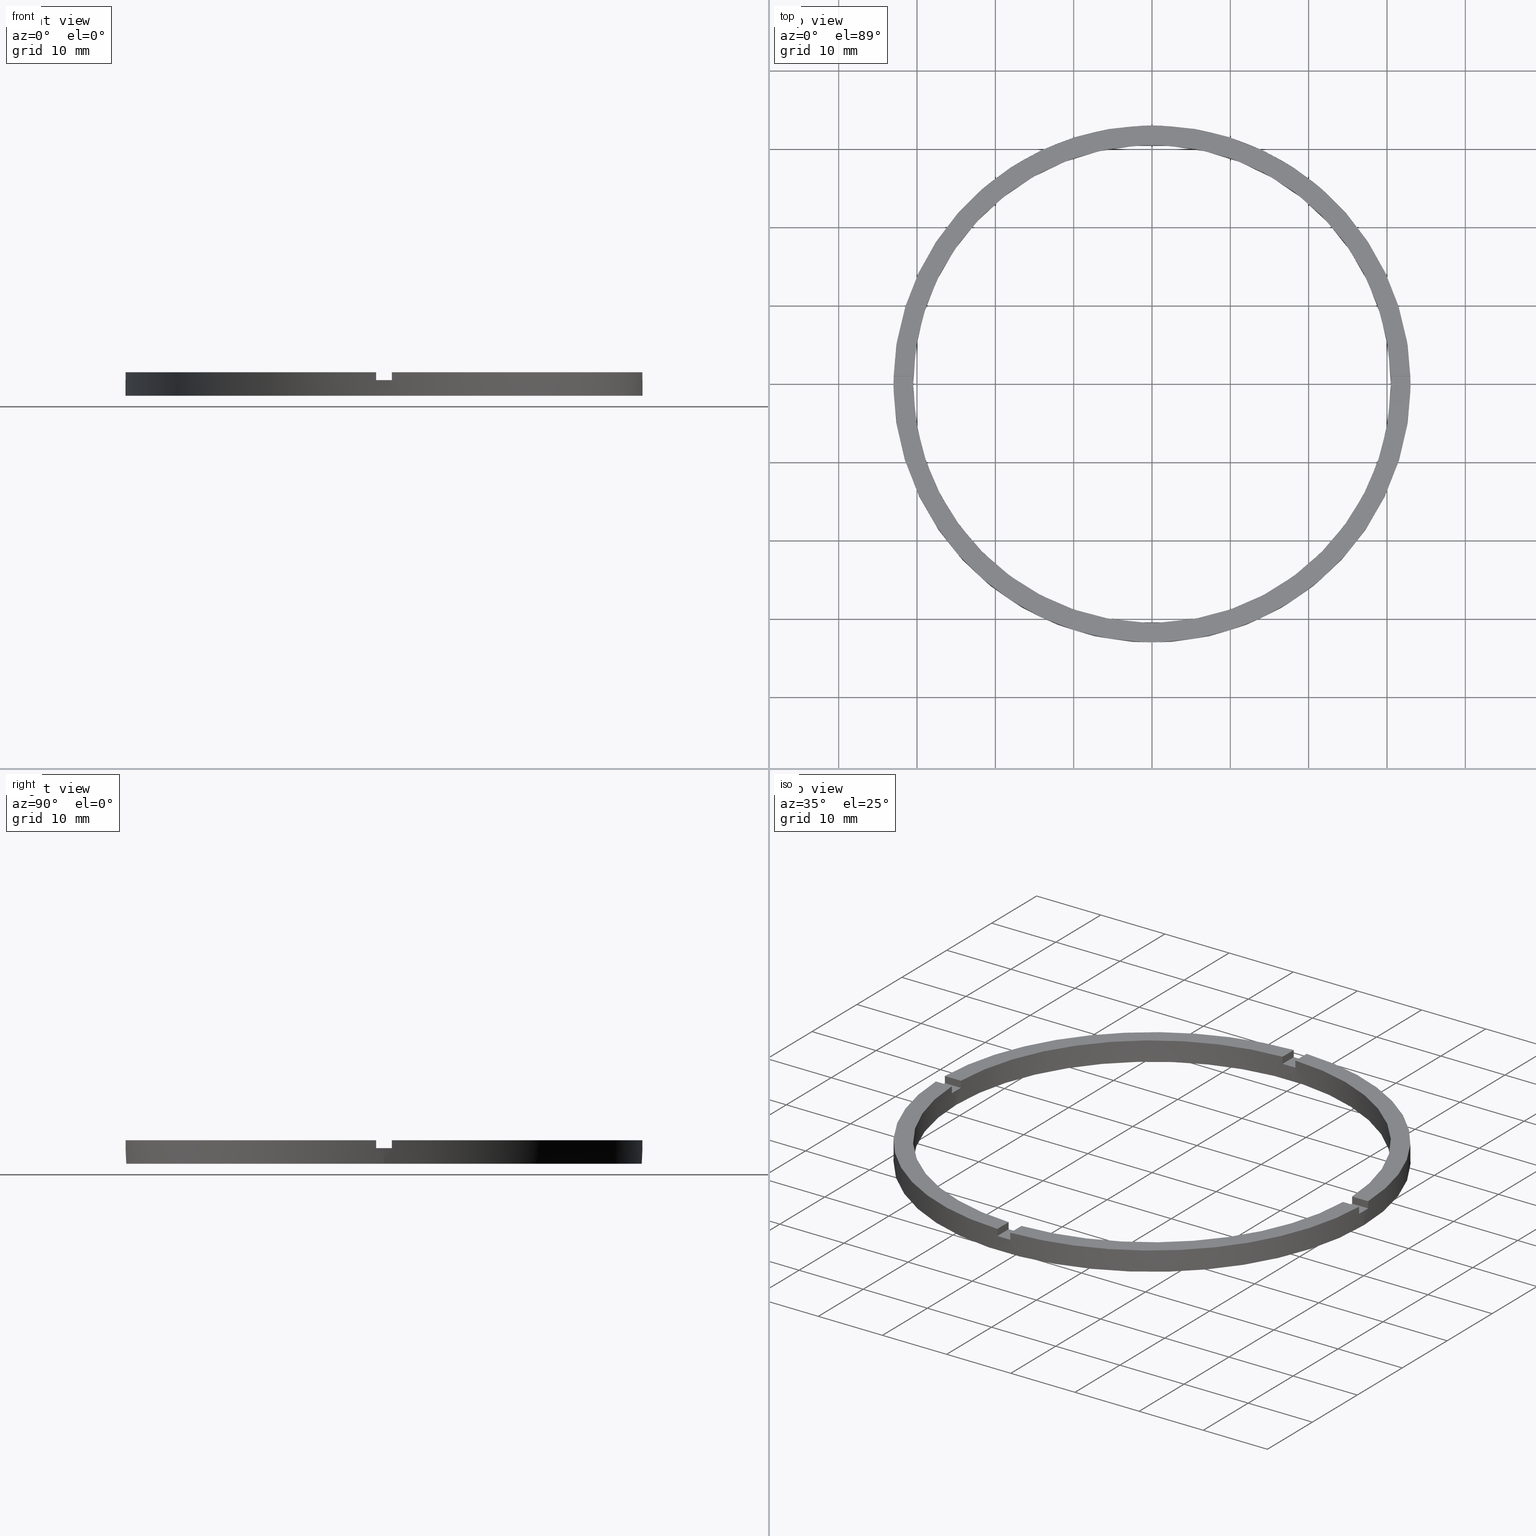
[diagram: canonical four-view strip — front | top / right | iso, engineering-drawing reading convention]
A machine part, canonical four-view strip (front | top / right | iso — engineering-drawing reading convention). The complete STEP part file that produces these views, byte-faithful:
ISO-10303-21;
HEADER;
FILE_DESCRIPTION (( 'STEP AP203' ),
    '1' );
FILE_NAME ('514136.step',
    '2024-12-26T02:40:59',
    ( 'MSI' ),
    ( '' ),
    'SwSTEP 2.0',
    'SolidWorks 2020',
    '' );
FILE_SCHEMA (( 'CONFIG_CONTROL_DESIGN' ));
ENDSEC;

DATA;
#1 = DIRECTION ( 'NONE',  ( 1.000000000000000000, 0.000000000000000000, -0.000000000000000000 ) ) ;
#2 = DIRECTION ( 'NONE',  ( 1.000000000000000000, 6.505213034913022906E-17, 0.000000000000000000 ) ) ;
#3 = EDGE_CURVE ( 'NONE', #632, #286, #391, .T. ) ;
#4 = AXIS2_PLACEMENT_3D ( 'NONE', #258, #661, #190 ) ;
#5 = ORIENTED_EDGE ( 'NONE', *, *, #474, .F. ) ;
#6 = DIRECTION ( 'NONE',  ( 0.000000000000000000, 0.000000000000000000, 1.000000000000000000 ) ) ;
#7 = ORIENTED_EDGE ( 'NONE', *, *, #455, .T. ) ;
#8 = ORIENTED_EDGE ( 'NONE', *, *, #720, .F. ) ;
#9 = DIRECTION ( 'NONE',  ( -0.000000000000000000, -0.000000000000000000, -1.000000000000000000 ) ) ;
#10 = ADVANCED_FACE ( 'NONE', ( #644 ), #398, .F. ) ;
#11 = AXIS2_PLACEMENT_3D ( 'NONE', #437, #256, #668 ) ;
#12 = ORIENTED_EDGE ( 'NONE', *, *, #601, .T. ) ;
#13 = CARTESIAN_POINT ( 'NONE',  ( -1.000000000000024647, 32.98484500494128469, 3.000000000000000000 ) ) ;
#14 = EDGE_CURVE ( 'NONE', #45, #372, #649, .T. ) ;
#15 = EDGE_CURVE ( 'NONE', #539, #82, #394, .T. ) ;
#16 = CARTESIAN_POINT ( 'NONE',  ( -23.00000000000018474, 0.9999999999999756861, 2.000000000000000000 ) ) ;
#17 = ORIENTED_EDGE ( 'NONE', *, *, #14, .T. ) ;
#18 = ORIENTED_EDGE ( 'NONE', *, *, #93, .T. ) ;
#19 = ORIENTED_EDGE ( 'NONE', *, *, #101, .T. ) ;
#20 = DIRECTION ( 'NONE',  ( 0.000000000000000000, 0.000000000000000000, 1.000000000000000000 ) ) ;
#21 = EDGE_LOOP ( 'NONE', ( #616, #496, #749, #353 ) ) ;
#22 = ORIENTED_EDGE ( 'NONE', *, *, #161, .T. ) ;
#23 = DIRECTION ( 'NONE',  ( 0.000000000000000000, -0.000000000000000000, 1.000000000000000000 ) ) ;
#24 = ORIENTED_EDGE ( 'NONE', *, *, #498, .T. ) ;
#25 = APPLICATION_CONTEXT ( 'configuration controlled 3d designs of mechanical parts and assemblies' ) ;
#26 = ORIENTED_EDGE ( 'NONE', *, *, #708, .F. ) ;
#27 = CARTESIAN_POINT ( 'NONE',  ( 0.000000000000000000, 0.000000000000000000, 2.000000000000000000 ) ) ;
#28 = CLOSED_SHELL ( 'NONE', ( #514, #322, #591, #763, #664, #40, #444, #654, #99, #243, #502, #583, #229, #476, #175, #677, #10, #233, #123, #271, #469 ) ) ;
#29 = ORIENTED_EDGE ( 'NONE', *, *, #68, .F. ) ;
#30 = DIRECTION ( 'NONE',  ( 1.000000000000000000, 0.000000000000000000, 0.000000000000000000 ) ) ;
#31 = CC_DESIGN_PERSON_AND_ORGANIZATION_ASSIGNMENT ( #193, #133, ( #523 ) ) ;
#32 = ORIENTED_EDGE ( 'NONE', *, *, #248, .F. ) ;
#33 = DIRECTION ( 'NONE',  ( 1.000000000000000000, 0.000000000000000000, 0.000000000000000000 ) ) ;
#34 = CARTESIAN_POINT ( 'NONE',  ( -1.000000000000024647, 23.00000000000000000, 2.000000000000000000 ) ) ;
#35 = EDGE_LOOP ( 'NONE', ( #115, #610, #605, #603, #552, #641, #83, #369, #32, #544, #342, #486 ) ) ;
#36 = VECTOR ( 'NONE', #771, 1000.000000000000000 ) ;
#37 = CARTESIAN_POINT ( 'NONE',  ( -1.000000000000024647, 30.48360214935236101, 3.000000000000000000 ) ) ;
#38 = ORIENTED_EDGE ( 'NONE', *, *, #441, .F. ) ;
#39 = CARTESIAN_POINT ( 'NONE',  ( 0.000000000000000000, 0.000000000000000000, 2.000000000000000000 ) ) ;
#40 = ADVANCED_FACE ( 'NONE', ( #399 ), #255, .T. ) ;
#41 = VERTEX_POINT ( 'NONE', #178 ) ;
#42 = FACE_OUTER_BOUND ( 'NONE', #146, .T. ) ;
#43 = DATE_TIME_ROLE ( 'creation_date' ) ;
#44 = CARTESIAN_POINT ( 'NONE',  ( 30.48360214935235390, -1.000000000000158540, 2.000000000000000000 ) ) ;
#45 = VERTEX_POINT ( 'NONE', #416 ) ;
#46 = CYLINDRICAL_SURFACE ( 'NONE', #509, 30.50000000000000000 ) ;
#47 = LINE ( 'NONE', #479, #67 ) ;
#48 = CIRCLE ( 'NONE', #4, 33.00000000000000000 ) ;
#49 = EDGE_CURVE ( 'NONE', #114, #343, #645, .T. ) ;
#50 = CIRCLE ( 'NONE', #220, 33.00000000000000000 ) ;
#51 = CARTESIAN_POINT ( 'NONE',  ( 0.000000000000000000, 0.000000000000000000, 3.000000000000000000 ) ) ;
#52 = AXIS2_PLACEMENT_3D ( 'NONE', #697, #782, #60 ) ;
#53 = CARTESIAN_POINT ( 'NONE',  ( 0.000000000000000000, 0.000000000000000000, 2.000000000000000000 ) ) ;
#54 = LINE ( 'NONE', #158, #301 ) ;
#55 = LINE ( 'NONE', #769, #306 ) ;
#56 = LINE ( 'NONE', #69, #584 ) ;
#57 = SECURITY_CLASSIFICATION_LEVEL ( 'unclassified' ) ;
#58 = VECTOR ( 'NONE', #488, 1000.000000000000000 ) ;
#59 = VECTOR ( 'NONE', #327, 1000.000000000000000 ) ;
#60 = DIRECTION ( 'NONE',  ( 1.301042606982605074E-16, -1.000000000000000000, 0.000000000000000000 ) ) ;
#61 = LINE ( 'NONE', #495, #297 ) ;
#62 = VECTOR ( 'NONE', #453, 1000.000000000000000 ) ;
#63 = FACE_OUTER_BOUND ( 'NONE', #21, .T. ) ;
#64 = LINE ( 'NONE', #504, #317 ) ;
#65 = CIRCLE ( 'NONE', #402, 30.50000000000000000 ) ;
#66 = AXIS2_PLACEMENT_3D ( 'NONE', #371, #446, #205 ) ;
#67 = VECTOR ( 'NONE', #570, 1000.000000000000000 ) ;
#68 = EDGE_CURVE ( 'NONE', #105, #196, #388, .T. ) ;
#69 = CARTESIAN_POINT ( 'NONE',  ( -1.000000000000162315, -23.00000000000018119, 3.000000000000000000 ) ) ;
#70 = CC_DESIGN_DATE_AND_TIME_ASSIGNMENT ( #454, #43, ( #500 ) ) ;
#71 = VECTOR ( 'NONE', #748, 1000.000000000000000 ) ;
#72 = CIRCLE ( 'NONE', #577, 30.50000000000000000 ) ;
#73 = LINE ( 'NONE', #722, #588 ) ;
#74 = VECTOR ( 'NONE', #155, 1000.000000000000000 ) ;
#75 = ORIENTED_EDGE ( 'NONE', *, *, #690, .F. ) ;
#76 = ORIENTED_EDGE ( 'NONE', *, *, #400, .T. ) ;
#77 = VERTEX_POINT ( 'NONE', #666 ) ;
#78 = ORIENTED_EDGE ( 'NONE', *, *, #227, .F. ) ;
#79 = DIRECTION ( 'NONE',  ( 1.000000000000000000, 0.000000000000000000, 0.000000000000000000 ) ) ;
#80 = CC_DESIGN_PERSON_AND_ORGANIZATION_ASSIGNMENT ( #409, #776, ( #500 ) ) ;
#81 = VERTEX_POINT ( 'NONE', #468 ) ;
#82 = VERTEX_POINT ( 'NONE', #503 ) ;
#83 = ORIENTED_EDGE ( 'NONE', *, *, #101, .F. ) ;
#84 = VERTEX_POINT ( 'NONE', #726 ) ;
#85 = ORIENTED_EDGE ( 'NONE', *, *, #110, .T. ) ;
#86 = ORIENTED_EDGE ( 'NONE', *, *, #559, .T. ) ;
#87 = VERTEX_POINT ( 'NONE', #721 ) ;
#88 = VERTEX_POINT ( 'NONE', #471 ) ;
#89 = ORIENTED_EDGE ( 'NONE', *, *, #331, .T. ) ;
#90 = EDGE_LOOP ( 'NONE', ( #92, #600, #636, #614 ) ) ;
#91 = DIRECTION ( 'NONE',  ( -1.000000000000000000, 0.000000000000000000, 0.000000000000000000 ) ) ;
#92 = ORIENTED_EDGE ( 'NONE', *, *, #366, .F. ) ;
#93 = EDGE_CURVE ( 'NONE', #633, #372, #137, .T. ) ;
#94 = ORIENTED_EDGE ( 'NONE', *, *, #472, .T. ) ;
#95 = EDGE_CURVE ( 'NONE', #294, #364, #128, .T. ) ;
#96 = ORIENTED_EDGE ( 'NONE', *, *, #335, .F. ) ;
#97 = CARTESIAN_POINT ( 'NONE',  ( -30.48360214935236101, -1.000000000000025535, 3.000000000000000000 ) ) ;
#98 = CARTESIAN_POINT ( 'NONE',  ( 0.9999999999998377964, -23.00000000000018119, 2.000000000000000000 ) ) ;
#99 = ADVANCED_FACE ( 'NONE', ( #405 ), #392, .F. ) ;
#100 = EDGE_LOOP ( 'NONE', ( #355, #724, #17, #212, #375, #272 ) ) ;
#101 = EDGE_CURVE ( 'NONE', #352, #367, #393, .T. ) ;
#102 = ORIENTED_EDGE ( 'NONE', *, *, #489, .F. ) ;
#103 = CARTESIAN_POINT ( 'NONE',  ( -23.00000000000018474, 0.9999999999999756861, 2.000000000000000000 ) ) ;
#104 = EDGE_LOOP ( 'NONE', ( #107, #373, #619, #506 ) ) ;
#105 = VERTEX_POINT ( 'NONE', #648 ) ;
#106 = DIRECTION ( 'NONE',  ( 1.000000000000000000, 0.000000000000000000, 0.000000000000000000 ) ) ;
#107 = ORIENTED_EDGE ( 'NONE', *, *, #300, .F. ) ;
#108 = ORIENTED_EDGE ( 'NONE', *, *, #244, .T. ) ;
#109 = CARTESIAN_POINT ( 'NONE',  ( -30.48360214935236101, 0.9999999999999744649, 3.000000000000000000 ) ) ;
#110 = EDGE_CURVE ( 'NONE', #671, #82, #647, .T. ) ;
#111 = CARTESIAN_POINT ( 'NONE',  ( 0.000000000000000000, 0.000000000000000000, 2.000000000000000000 ) ) ;
#112 = ORIENTED_EDGE ( 'NONE', *, *, #251, .T. ) ;
#113 = CARTESIAN_POINT ( 'NONE',  ( 30.50000000000000000, 3.735172737399427541E-15, 0.000000000000000000 ) ) ;
#114 = VERTEX_POINT ( 'NONE', #231 ) ;
#115 = ORIENTED_EDGE ( 'NONE', *, *, #436, .F. ) ;
#116 = ORIENTED_EDGE ( 'NONE', *, *, #745, .T. ) ;
#117 = DIRECTION ( 'NONE',  ( -0.000000000000000000, -0.000000000000000000, -1.000000000000000000 ) ) ;
#118 = DIRECTION ( 'NONE',  ( 1.000000000000000000, 0.000000000000000000, 0.000000000000000000 ) ) ;
#119 = CARTESIAN_POINT ( 'NONE',  ( 0.000000000000000000, 0.000000000000000000, 2.000000000000000000 ) ) ;
#120 = ORIENTED_EDGE ( 'NONE', *, *, #455, .F. ) ;
#121 = DIRECTION ( 'NONE',  ( 1.000000000000000000, 0.000000000000000000, -0.000000000000000000 ) ) ;
#122 = VECTOR ( 'NONE', #485, 1000.000000000000000 ) ;
#123 = ADVANCED_FACE ( 'NONE', ( #131 ), #345, .F. ) ;
#124 = VECTOR ( 'NONE', #477, 1000.000000000000000 ) ;
#125 = PRODUCT_DEFINITION_SHAPE ( 'NONE', 'NONE',  #500 ) ;
#126 = AXIS2_PLACEMENT_3D ( 'NONE', #237, #20, #106 ) ;
#127 = VERTEX_POINT ( 'NONE', #779 ) ;
#128 = CIRCLE ( 'NONE', #651, 30.50000000000000000 ) ;
#129 = ORIENTED_EDGE ( 'NONE', *, *, #270, .F. ) ;
#130 = AXIS2_PLACEMENT_3D ( 'NONE', #199, #480, #582 ) ;
#131 = FACE_OUTER_BOUND ( 'NONE', #276, .T. ) ;
#132 = DIRECTION ( 'NONE',  ( 0.000000000000000000, 0.000000000000000000, 1.000000000000000000 ) ) ;
#133 = PERSON_AND_ORGANIZATION_ROLE ( 'design_supplier' ) ;
#134 = VECTOR ( 'NONE', #222, 1000.000000000000000 ) ;
#135 = DIRECTION ( 'NONE',  ( 1.000000000000000000, 0.000000000000000000, 0.000000000000000000 ) ) ;
#136 = ORIENTED_EDGE ( 'NONE', *, *, #3, .F. ) ;
#137 = LINE ( 'NONE', #97, #144 ) ;
#138 = CIRCLE ( 'NONE', #734, 30.50000000000000000 ) ;
#139 = EDGE_LOOP ( 'NONE', ( #120, #551, #553, #612 ) ) ;
#140 = ORIENTED_EDGE ( 'NONE', *, *, #312, .T. ) ;
#141 = VECTOR ( 'NONE', #239, 1000.000000000000000 ) ;
#142 = PLANE ( 'NONE',  #66 ) ;
#143 = PERSON_AND_ORGANIZATION_ROLE ( 'design_owner' ) ;
#144 = VECTOR ( 'NONE', #117, 1000.000000000000000 ) ;
#145 = CARTESIAN_POINT ( 'NONE',  ( 32.98484500494129179, 0.9999999999998416822, 2.000000000000000000 ) ) ;
#146 = EDGE_LOOP ( 'NONE', ( #350, #96 ) ) ;
#147 = LOCAL_TIME ( 10, 40, 59.00000000000000000, #684 ) ;
#148 = CC_DESIGN_SECURITY_CLASSIFICATION ( #183, ( #523 ) ) ;
#149 = CALENDAR_DATE ( 2024, 26, 12 ) ;
#150 = CARTESIAN_POINT ( 'NONE',  ( 0.000000000000000000, 0.000000000000000000, 0.000000000000000000 ) ) ;
#151 = AXIS2_PLACEMENT_3D ( 'NONE', #354, #167, #337 ) ;
#152 = ORGANIZATION ( 'δָ��', 'δָ��', '' ) ;
#153 = ORIENTED_EDGE ( 'NONE', *, *, #204, .T. ) ;
#154 = PERSON_AND_ORGANIZATION ( #277, #152 ) ;
#155 = DIRECTION ( 'NONE',  ( -0.000000000000000000, -0.000000000000000000, -1.000000000000000000 ) ) ;
#156 = ORIENTED_EDGE ( 'NONE', *, *, #436, .T. ) ;
#157 = LINE ( 'NONE', #182, #164 ) ;
#158 = CARTESIAN_POINT ( 'NONE',  ( 0.9999999999998386846, -30.48360214935236456, 3.000000000000000000 ) ) ;
#159 = APPROVAL_PERSON_ORGANIZATION ( #421, #252, #580 ) ;
#160 = CARTESIAN_POINT ( 'NONE',  ( 30.48360214935236456, 0.9999999999998414602, 3.000000000000000000 ) ) ;
#161 = EDGE_CURVE ( 'NONE', #632, #77, #397, .T. ) ;
#162 = CYLINDRICAL_SURFACE ( 'NONE', #481, 33.00000000000000000 ) ;
#163 = LINE ( 'NONE', #492, #693 ) ;
#164 = VECTOR ( 'NONE', #754, 1000.000000000000000 ) ;
#165 = LINE ( 'NONE', #517, #663 ) ;
#166 = ADVANCED_BREP_SHAPE_REPRESENTATION ( '514136', ( #324, #386 ), #615 ) ;
#167 = DIRECTION ( 'NONE',  ( -0.000000000000000000, -0.000000000000000000, -1.000000000000000000 ) ) ;
#168 = VECTOR ( 'NONE', #598, 1000.000000000000000 ) ;
#169 = PRODUCT ( '514136', '514136', '', ( #516 ) ) ;
#170 = CIRCLE ( 'NONE', #675, 33.00000000000000000 ) ;
#171 = CARTESIAN_POINT ( 'NONE',  ( 33.00000000000000000, 4.041334437186266200E-15, 3.000000000000000000 ) ) ;
#172 = VECTOR ( 'NONE', #529, 1000.000000000000000 ) ;
#173 = DIRECTION ( 'NONE',  ( 0.000000000000000000, 0.000000000000000000, 1.000000000000000000 ) ) ;
#174 = AXIS2_PLACEMENT_3D ( 'NONE', #737, #781, #278 ) ;
#175 = ADVANCED_FACE ( 'NONE', ( #650 ), #438, .T. ) ;
#176 = CALENDAR_DATE ( 2024, 26, 12 ) ;
#177 = CARTESIAN_POINT ( 'NONE',  ( 0.000000000000000000, 0.000000000000000000, 2.000000000000000000 ) ) ;
#178 = CARTESIAN_POINT ( 'NONE',  ( -1.000000000000024647, 30.48360214935236101, 2.000000000000000000 ) ) ;
#179 = DATE_AND_TIME ( #185, #201 ) ;
#180 = DIRECTION ( 'NONE',  ( -0.000000000000000000, 0.000000000000000000, 1.000000000000000000 ) ) ;
#181 = CALENDAR_DATE ( 2024, 26, 12 ) ;
#182 = CARTESIAN_POINT ( 'NONE',  ( -23.00000000000018474, 0.9999999999999756861, 3.000000000000000000 ) ) ;
#183 = SECURITY_CLASSIFICATION ( '', '', #57 ) ;
#184 = EDGE_CURVE ( 'NONE', #292, #218, #138, .T. ) ;
#185 = CALENDAR_DATE ( 2024, 26, 12 ) ;
#186 = AXIS2_PLACEMENT_3D ( 'NONE', #224, #173, #412 ) ;
#187 = DIRECTION ( 'NONE',  ( -1.301042606982605074E-16, 1.000000000000000000, -0.000000000000000000 ) ) ;
#188 = LOCAL_TIME ( 10, 40, 59.00000000000000000, #200 ) ;
#189 = EDGE_CURVE ( 'NONE', #608, #716, #653, .T. ) ;
#190 = DIRECTION ( 'NONE',  ( 1.000000000000000000, 0.000000000000000000, 0.000000000000000000 ) ) ;
#191 = DIRECTION ( 'NONE',  ( 0.000000000000000000, 0.000000000000000000, 1.000000000000000000 ) ) ;
#192 = DIRECTION ( 'NONE',  ( 0.000000000000000000, 0.000000000000000000, 1.000000000000000000 ) ) ;
#193 = PERSON_AND_ORGANIZATION ( #277, #152 ) ;
#194 = CARTESIAN_POINT ( 'NONE',  ( 0.000000000000000000, 0.000000000000000000, 3.000000000000000000 ) ) ;
#195 = CARTESIAN_POINT ( 'NONE',  ( -1.000000000000160982, -32.98484500494128469, 3.000000000000000000 ) ) ;
#196 = VERTEX_POINT ( 'NONE', #773 ) ;
#197 = COORDINATED_UNIVERSAL_TIME_OFFSET ( 8, 0, .AHEAD. ) ;
#198 = APPLICATION_PROTOCOL_DEFINITION ( 'international standard', 'config_control_design', 1994, #736 ) ;
#199 = CARTESIAN_POINT ( 'NONE',  ( 0.000000000000000000, 0.000000000000000000, 3.000000000000000000 ) ) ;
#200 = COORDINATED_UNIVERSAL_TIME_OFFSET ( 8, 0, .AHEAD. ) ;
#201 = LOCAL_TIME ( 10, 40, 59.00000000000000000, #197 ) ;
#202 = DIRECTION ( 'NONE',  ( -0.000000000000000000, -1.000000000000000000, -0.000000000000000000 ) ) ;
#203 = AXIS2_PLACEMENT_3D ( 'NONE', #701, #741, #2 ) ;
#204 = EDGE_CURVE ( 'NONE', #396, #364, #403, .T. ) ;
#205 = DIRECTION ( 'NONE',  ( 1.000000000000000000, 1.951563910473908228E-16, 0.000000000000000000 ) ) ;
#206 = PLANE ( 'NONE',  #174 ) ;
#207 = VERTEX_POINT ( 'NONE', #424 ) ;
#208 = ORIENTED_EDGE ( 'NONE', *, *, #442, .F. ) ;
#209 = PERSON_AND_ORGANIZATION_ROLE ( 'creator' ) ;
#210 = DIRECTION ( 'NONE',  ( 1.000000000000000000, 6.505213034913022906E-17, 0.000000000000000000 ) ) ;
#211 = EDGE_LOOP ( 'NONE', ( #136, #380, #339, #377 ) ) ;
#212 = ORIENTED_EDGE ( 'NONE', *, *, #742, .F. ) ;
#213 = PLANE ( 'NONE',  #52 ) ;
#214 = AXIS2_PLACEMENT_3D ( 'NONE', #466, #714, #662 ) ;
#215 = ORIENTED_EDGE ( 'NONE', *, *, #245, .T. ) ;
#216 = DIRECTION ( 'NONE',  ( -1.301042606982605074E-16, 1.000000000000000000, -0.000000000000000000 ) ) ;
#217 = CARTESIAN_POINT ( 'NONE',  ( -32.98484500494129179, 0.9999999999999737987, 3.000000000000000000 ) ) ;
#218 = VERTEX_POINT ( 'NONE', #473 ) ;
#219 = EDGE_CURVE ( 'NONE', #81, #639, #566, .T. ) ;
#220 = AXIS2_PLACEMENT_3D ( 'NONE', #727, #478, #118 ) ;
#221 = PLANE ( 'NONE',  #760 ) ;
#222 = DIRECTION ( 'NONE',  ( -0.000000000000000000, -0.000000000000000000, -1.000000000000000000 ) ) ;
#223 = CARTESIAN_POINT ( 'NONE',  ( 0.9999999999999753530, 30.48360214935236101, 3.000000000000000000 ) ) ;
#224 = CARTESIAN_POINT ( 'NONE',  ( 0.000000000000000000, 0.000000000000000000, 3.000000000000000000 ) ) ;
#225 = AXIS2_PLACEMENT_3D ( 'NONE', #246, #527, #604 ) ;
#226 = CARTESIAN_POINT ( 'NONE',  ( 0.9999999999999753530, 32.98484500494129179, 3.000000000000000000 ) ) ;
#227 = EDGE_CURVE ( 'NONE', #84, #87, #319, .T. ) ;
#228 = CC_DESIGN_PERSON_AND_ORGANIZATION_ASSIGNMENT ( #705, #209, ( #523 ) ) ;
#229 = ADVANCED_FACE ( 'NONE', ( #308 ), #484, .F. ) ;
#230 = DIRECTION ( 'NONE',  ( -0.000000000000000000, -1.000000000000000000, -0.000000000000000000 ) ) ;
#231 = CARTESIAN_POINT ( 'NONE',  ( -1.000000000000160982, -32.98484500494128469, 2.000000000000000000 ) ) ;
#232 = DIRECTION ( 'NONE',  ( 1.000000000000000000, -0.000000000000000000, 0.000000000000000000 ) ) ;
#233 = ADVANCED_FACE ( 'NONE', ( #571 ), #275, .T. ) ;
#234 = CARTESIAN_POINT ( 'NONE',  ( -1.000000000000024647, 23.00000000000000000, 3.000000000000000000 ) ) ;
#235 = PLANE ( 'NONE',  #783 ) ;
#236 = CC_DESIGN_PERSON_AND_ORGANIZATION_ASSIGNMENT ( #154, #143, ( #169 ) ) ;
#237 = CARTESIAN_POINT ( 'NONE',  ( 0.000000000000000000, 0.000000000000000000, 0.000000000000000000 ) ) ;
#238 = ORIENTED_EDGE ( 'NONE', *, *, #620, .F. ) ;
#239 = DIRECTION ( 'NONE',  ( -0.000000000000000000, -0.000000000000000000, -1.000000000000000000 ) ) ;
#240 = DIRECTION ( 'NONE',  ( -0.000000000000000000, -0.000000000000000000, -1.000000000000000000 ) ) ;
#241 = PERSON_AND_ORGANIZATION_ROLE ( 'classification_officer' ) ;
#242 = CARTESIAN_POINT ( 'NONE',  ( -30.48360214935236101, -1.000000000000025535, 3.000000000000000000 ) ) ;
#243 = ADVANCED_FACE ( 'NONE', ( #318 ), #142, .F. ) ;
#244 = EDGE_CURVE ( 'NONE', #608, #624, #310, .T. ) ;
#245 = EDGE_CURVE ( 'NONE', #623, #218, #302, .T. ) ;
#246 = CARTESIAN_POINT ( 'NONE',  ( 0.000000000000000000, 0.000000000000000000, 3.000000000000000000 ) ) ;
#247 = CARTESIAN_POINT ( 'NONE',  ( 0.9999999999999753530, 23.00000000000000000, 3.000000000000000000 ) ) ;
#248 = EDGE_CURVE ( 'NONE', #334, #395, #558, .T. ) ;
#249 = CARTESIAN_POINT ( 'NONE',  ( 30.50000000000000000, 3.735172737399427541E-15, 3.000000000000000000 ) ) ;
#250 = AXIS2_PLACEMENT_3D ( 'NONE', #309, #410, #575 ) ;
#251 = EDGE_CURVE ( 'NONE', #347, #45, #55, .T. ) ;
#252 = APPROVAL ( #770, 'δָ��' ) ;
#253 = PLANE ( 'NONE',  #282 ) ;
#254 = AXIS2_PLACEMENT_3D ( 'NONE', #519, #23, #758 ) ;
#255 = PLANE ( 'NONE',  #250 ) ;
#256 = DIRECTION ( 'NONE',  ( -1.000000000000000000, 0.000000000000000000, 0.000000000000000000 ) ) ;
#257 = EDGE_CURVE ( 'NONE', #716, #557, #590, .T. ) ;
#258 = CARTESIAN_POINT ( 'NONE',  ( 0.000000000000000000, 0.000000000000000000, 2.000000000000000000 ) ) ;
#259 = EDGE_CURVE ( 'NONE', #639, #671, #47, .T. ) ;
#260 = DIRECTION ( 'NONE',  ( -0.000000000000000000, -0.000000000000000000, -1.000000000000000000 ) ) ;
#261 = DIRECTION ( 'NONE',  ( 1.000000000000000000, 0.000000000000000000, 0.000000000000000000 ) ) ;
#262 = DIRECTION ( 'NONE',  ( -1.000000000000000000, 0.000000000000000000, 0.000000000000000000 ) ) ;
#263 = DIRECTION ( 'NONE',  ( 1.000000000000000000, 6.505213034913022906E-17, 0.000000000000000000 ) ) ;
#264 = EDGE_LOOP ( 'NONE', ( #382, #153, #404, #494 ) ) ;
#265 = DIRECTION ( 'NONE',  ( 1.000000000000000000, 0.000000000000000000, 0.000000000000000000 ) ) ;
#266 = CARTESIAN_POINT ( 'NONE',  ( 33.00000000000000000, 4.041334437186266200E-15, 2.000000000000000000 ) ) ;
#267 = VECTOR ( 'NONE', #435, 1000.000000000000000 ) ;
#268 = EDGE_LOOP ( 'NONE', ( #365, #8, #637, #29, #12, #129, #643, #606, #112, #75, #349, #85 ) ) ;
#269 = CARTESIAN_POINT ( 'NONE',  ( 0.9999999999998391287, -32.98484500494129179, 2.000000000000000000 ) ) ;
#270 = EDGE_CURVE ( 'NONE', #114, #625, #48, .T. ) ;
#271 = ADVANCED_FACE ( 'NONE', ( #599 ), #669, .F. ) ;
#272 = ORIENTED_EDGE ( 'NONE', *, *, #673, .T. ) ;
#273 = APPROVAL_ROLE ( '' ) ;
#274 = DIRECTION ( 'NONE',  ( 0.000000000000000000, 0.000000000000000000, 1.000000000000000000 ) ) ;
#275 = PLANE ( 'NONE',  #555 ) ;
#276 = EDGE_LOOP ( 'NONE', ( #640, #116, #238, #281 ) ) ;
#277 = PERSON ( 'δָ��', 'δָ��', 'δָ��', ('δָ��'), ('δָ��'), ('δָ��') ) ;
#278 = DIRECTION ( 'NONE',  ( -1.000000000000000000, -6.505213034913022906E-17, 0.000000000000000000 ) ) ;
#279 = APPROVAL ( #679, 'δָ��' ) ;
#280 = ORIENTED_EDGE ( 'NONE', *, *, #441, .T. ) ;
#281 = ORIENTED_EDGE ( 'NONE', *, *, #538, .F. ) ;
#282 = AXIS2_PLACEMENT_3D ( 'NONE', #103, #646, #428 ) ;
#283 = ORIENTED_EDGE ( 'NONE', *, *, #493, .F. ) ;
#284 = EDGE_CURVE ( 'NONE', #396, #41, #293, .T. ) ;
#285 = CARTESIAN_POINT ( 'NONE',  ( -1.000000000000024647, 30.48360214935236101, 3.000000000000000000 ) ) ;
#286 = VERTEX_POINT ( 'NONE', #346 ) ;
#287 = ORIENTED_EDGE ( 'NONE', *, *, #507, .F. ) ;
#288 = ORIENTED_EDGE ( 'NONE', *, *, #93, .F. ) ;
#289 = LINE ( 'NONE', #363, #267 ) ;
#290 = CARTESIAN_POINT ( 'NONE',  ( 0.000000000000000000, 0.000000000000000000, 2.000000000000000000 ) ) ;
#291 = ORIENTED_EDGE ( 'NONE', *, *, #750, .F. ) ;
#292 = VERTEX_POINT ( 'NONE', #37 ) ;
#293 = CIRCLE ( 'NONE', #739, 30.50000000000000000 ) ;
#294 = VERTEX_POINT ( 'NONE', #756 ) ;
#295 = CIRCLE ( 'NONE', #186, 30.50000000000000000 ) ;
#296 = ORIENTED_EDGE ( 'NONE', *, *, #511, .T. ) ;
#297 = VECTOR ( 'NONE', #216, 1000.000000000000000 ) ;
#298 = AXIS2_PLACEMENT_3D ( 'NONE', #561, #508, #262 ) ;
#299 = LINE ( 'NONE', #98, #593 ) ;
#300 = EDGE_CURVE ( 'NONE', #127, #196, #73, .T. ) ;
#301 = VECTOR ( 'NONE', #464, 1000.000000000000000 ) ;
#302 = LINE ( 'NONE', #109, #330 ) ;
#303 = CARTESIAN_POINT ( 'NONE',  ( 0.000000000000000000, 0.000000000000000000, 2.000000000000000000 ) ) ;
#304 = CIRCLE ( 'NONE', #688, 33.00000000000000000 ) ;
#305 = CARTESIAN_POINT ( 'NONE',  ( 0.9999999999999753530, 23.00000000000000000, 2.000000000000000000 ) ) ;
#306 = VECTOR ( 'NONE', #240, 1000.000000000000000 ) ;
#307 = CIRCLE ( 'NONE', #463, 30.50000000000000000 ) ;
#308 = FACE_OUTER_BOUND ( 'NONE', #725, .T. ) ;
#309 = CARTESIAN_POINT ( 'NONE',  ( 0.000000000000000000, 0.000000000000000000, 3.000000000000000000 ) ) ;
#310 = CIRCLE ( 'NONE', #225, 33.00000000000000000 ) ;
#311 = LINE ( 'NONE', #389, #74 ) ;
#312 = EDGE_CURVE ( 'NONE', #625, #88, #299, .T. ) ;
#313 = DIRECTION ( 'NONE',  ( -0.000000000000000000, -0.000000000000000000, -1.000000000000000000 ) ) ;
#314 = AXIS2_PLACEMENT_3D ( 'NONE', #520, #191, #121 ) ;
#315 = LINE ( 'NONE', #249, #594 ) ;
#316 = FACE_OUTER_BOUND ( 'NONE', #728, .T. ) ;
#317 = VECTOR ( 'NONE', #475, 1000.000000000000000 ) ;
#318 = FACE_OUTER_BOUND ( 'NONE', #320, .T. ) ;
#319 = LINE ( 'NONE', #568, #58 ) ;
#320 = EDGE_LOOP ( 'NONE', ( #338, #18, #562, #730 ) ) ;
#321 = CARTESIAN_POINT ( 'NONE',  ( 32.98484500494129179, 0.9999999999998416822, 3.000000000000000000 ) ) ;
#322 = ADVANCED_FACE ( 'NONE', ( #563 ), #569, .T. ) ;
#323 = LINE ( 'NONE', #160, #62 ) ;
#324 = MANIFOLD_SOLID_BREP ( '�г�-����1', #28 ) ;
#325 = CARTESIAN_POINT ( 'NONE',  ( 0.000000000000000000, 0.000000000000000000, 3.000000000000000000 ) ) ;
#326 = ORIENTED_EDGE ( 'NONE', *, *, #161, .F. ) ;
#327 = DIRECTION ( 'NONE',  ( -1.000000000000000000, -6.505213034913022906E-17, -0.000000000000000000 ) ) ;
#328 = FACE_OUTER_BOUND ( 'NONE', #139, .T. ) ;
#329 = EDGE_CURVE ( 'NONE', #396, #334, #574, .T. ) ;
#330 = VECTOR ( 'NONE', #359, 1000.000000000000000 ) ;
#331 = EDGE_CURVE ( 'NONE', #608, #294, #567, .T. ) ;
#332 = AXIS2_PLACEMENT_3D ( 'NONE', #303, #406, #609 ) ;
#333 = PLANE ( 'NONE',  #419 ) ;
#334 = VERTEX_POINT ( 'NONE', #460 ) ;
#335 = EDGE_CURVE ( 'NONE', #82, #671, #50, .T. ) ;
#336 = ORIENTED_EDGE ( 'NONE', *, *, #655, .T. ) ;
#337 = DIRECTION ( 'NONE',  ( -1.000000000000000000, 0.000000000000000000, 0.000000000000000000 ) ) ;
#338 = ORIENTED_EDGE ( 'NONE', *, *, #542, .T. ) ;
#339 = ORIENTED_EDGE ( 'NONE', *, *, #300, .T. ) ;
#340 = APPLICATION_PROTOCOL_DEFINITION ( 'international standard', 'config_control_design', 1994, #25 ) ;
#341 = PLANE ( 'NONE',  #130 ) ;
#342 = ORIENTED_EDGE ( 'NONE', *, *, #244, .F. ) ;
#343 = VERTEX_POINT ( 'NONE', #195 ) ;
#344 = ORIENTED_EDGE ( 'NONE', *, *, #257, .F. ) ;
#345 = PLANE ( 'NONE',  #11 ) ;
#346 = CARTESIAN_POINT ( 'NONE',  ( 32.98484500494128469, -1.000000000000158318, 2.000000000000000000 ) ) ;
#347 = VERTEX_POINT ( 'NONE', #499 ) ;
#348 = CARTESIAN_POINT ( 'NONE',  ( 0.000000000000000000, 0.000000000000000000, 2.000000000000000000 ) ) ;
#349 = ORIENTED_EDGE ( 'NONE', *, *, #259, .T. ) ;
#350 = ORIENTED_EDGE ( 'NONE', *, *, #110, .F. ) ;
#351 = CARTESIAN_POINT ( 'NONE',  ( 0.000000000000000000, 0.000000000000000000, 3.000000000000000000 ) ) ;
#352 = VERTEX_POINT ( 'NONE', #13 ) ;
#353 = ORIENTED_EDGE ( 'NONE', *, *, #329, .T. ) ;
#354 = CARTESIAN_POINT ( 'NONE',  ( 0.000000000000000000, 0.000000000000000000, 3.000000000000000000 ) ) ;
#355 = ORIENTED_EDGE ( 'NONE', *, *, #219, .T. ) ;
#356 = ORIENTED_EDGE ( 'NONE', *, *, #204, .F. ) ;
#357 = CARTESIAN_POINT ( 'NONE',  ( 32.98484500494129179, 0.9999999999998416822, 3.000000000000000000 ) ) ;
#358 = AXIS2_PLACEMENT_3D ( 'NONE', #194, #715, #657 ) ;
#359 = DIRECTION ( 'NONE',  ( 0.000000000000000000, 0.000000000000000000, 1.000000000000000000 ) ) ;
#360 = ORIENTED_EDGE ( 'NONE', *, *, #673, .F. ) ;
#361 =( NAMED_UNIT ( * ) SI_UNIT ( $, .STERADIAN. ) SOLID_ANGLE_UNIT ( ) );
#362 = VERTEX_POINT ( 'NONE', #638 ) ;
#363 = CARTESIAN_POINT ( 'NONE',  ( -23.00000000000018474, -1.000000000000024203, 3.000000000000000000 ) ) ;
#364 = VERTEX_POINT ( 'NONE', #223 ) ;
#365 = ORIENTED_EDGE ( 'NONE', *, *, #15, .F. ) ;
#366 = EDGE_CURVE ( 'NONE', #87, #343, #56, .T. ) ;
#367 = VERTEX_POINT ( 'NONE', #217 ) ;
#368 = ORIENTED_EDGE ( 'NONE', *, *, #184, .F. ) ;
#369 = ORIENTED_EDGE ( 'NONE', *, *, #538, .T. ) ;
#370 = ORIENTED_EDGE ( 'NONE', *, *, #189, .F. ) ;
#371 = CARTESIAN_POINT ( 'NONE',  ( -23.00000000000018474, -1.000000000000024203, 2.000000000000000000 ) ) ;
#372 = VERTEX_POINT ( 'NONE', #627 ) ;
#373 = ORIENTED_EDGE ( 'NONE', *, *, #498, .F. ) ;
#374 = DIRECTION ( 'NONE',  ( 1.000000000000000000, 0.000000000000000000, 0.000000000000000000 ) ) ;
#375 = ORIENTED_EDGE ( 'NONE', *, *, #511, .F. ) ;
#376 = ORIENTED_EDGE ( 'NONE', *, *, #400, .F. ) ;
#377 = ORIENTED_EDGE ( 'NONE', *, *, #687, .F. ) ;
#378 = ORIENTED_EDGE ( 'NONE', *, *, #95, .T. ) ;
#379 = ORIENTED_EDGE ( 'NONE', *, *, #474, .T. ) ;
#380 = ORIENTED_EDGE ( 'NONE', *, *, #750, .T. ) ;
#381 = EDGE_LOOP ( 'NONE', ( #659, #156, #401, #208, #326, #550 ) ) ;
#382 = ORIENTED_EDGE ( 'NONE', *, *, #329, .F. ) ;
#383 = DIRECTION ( 'NONE',  ( 0.000000000000000000, 0.000000000000000000, 1.000000000000000000 ) ) ;
#384 = ORIENTED_EDGE ( 'NONE', *, *, #184, .T. ) ;
#385 = ORIENTED_EDGE ( 'NONE', *, *, #331, .F. ) ;
#386 = AXIS2_PLACEMENT_3D ( 'NONE', #150, #447, #759 ) ;
#387 = ORIENTED_EDGE ( 'NONE', *, *, #559, .F. ) ;
#388 = CIRCLE ( 'NONE', #702, 33.00000000000000000 ) ;
#389 = CARTESIAN_POINT ( 'NONE',  ( -30.50000000000000000, 0.000000000000000000, 3.000000000000000000 ) ) ;
#390 = ORIENTED_EDGE ( 'NONE', *, *, #270, .T. ) ;
#391 = LINE ( 'NONE', #744, #642 ) ;
#392 = CYLINDRICAL_SURFACE ( 'NONE', #298, 30.50000000000000000 ) ;
#393 = CIRCLE ( 'NONE', #358, 33.00000000000000000 ) ;
#394 = LINE ( 'NONE', #171, #134 ) ;
#395 = VERTEX_POINT ( 'NONE', #532 ) ;
#396 = VERTEX_POINT ( 'NONE', #743 ) ;
#397 = CIRCLE ( 'NONE', #415, 30.50000000000000000 ) ;
#398 = PLANE ( 'NONE',  #203 ) ;
#399 = FACE_OUTER_BOUND ( 'NONE', #90, .T. ) ;
#400 = EDGE_CURVE ( 'NONE', #84, #88, #585, .T. ) ;
#401 = ORIENTED_EDGE ( 'NONE', *, *, #257, .T. ) ;
#402 = AXIS2_PLACEMENT_3D ( 'NONE', #177, #753, #672 ) ;
#403 = LINE ( 'NONE', #660, #656 ) ;
#404 = ORIENTED_EDGE ( 'NONE', *, *, #717, .T. ) ;
#405 = FACE_OUTER_BOUND ( 'NONE', #628, .T. ) ;
#406 = DIRECTION ( 'NONE',  ( -0.000000000000000000, 0.000000000000000000, 1.000000000000000000 ) ) ;
#407 = DATE_AND_TIME ( #149, #147 ) ;
#408 = DIRECTION ( 'NONE',  ( 0.000000000000000000, 0.000000000000000000, 1.000000000000000000 ) ) ;
#409 = PERSON_AND_ORGANIZATION ( #277, #152 ) ;
#410 = DIRECTION ( 'NONE',  ( 0.000000000000000000, 0.000000000000000000, 1.000000000000000000 ) ) ;
#411 = COORDINATED_UNIVERSAL_TIME_OFFSET ( 8, 0, .AHEAD. ) ;
#412 = DIRECTION ( 'NONE',  ( 1.000000000000000000, 0.000000000000000000, 0.000000000000000000 ) ) ;
#413 = FACE_OUTER_BOUND ( 'NONE', #268, .T. ) ;
#414 = LINE ( 'NONE', #490, #431 ) ;
#415 = AXIS2_PLACEMENT_3D ( 'NONE', #119, #515, #765 ) ;
#416 = CARTESIAN_POINT ( 'NONE',  ( -32.98484500494128469, -1.000000000000026201, 2.000000000000000000 ) ) ;
#417 = VECTOR ( 'NONE', #230, 1000.000000000000000 ) ;
#418 = LINE ( 'NONE', #247, #172 ) ;
#419 = AXIS2_PLACEMENT_3D ( 'NONE', #501, #556, #718 ) ;
#420 = LINE ( 'NONE', #285, #698 ) ;
#421 = PERSON_AND_ORGANIZATION ( #277, #152 ) ;
#422 = DIRECTION ( 'NONE',  ( 1.000000000000000000, 0.000000000000000000, 0.000000000000000000 ) ) ;
#423 = LINE ( 'NONE', #234, #676 ) ;
#424 = CARTESIAN_POINT ( 'NONE',  ( -30.50000000000000000, 0.000000000000000000, 0.000000000000000000 ) ) ;
#425 = FACE_OUTER_BOUND ( 'NONE', #104, .T. ) ;
#426 = CARTESIAN_POINT ( 'NONE',  ( 22.99999999999999645, 0.9999999999998411271, 2.000000000000000000 ) ) ;
#427 = FACE_OUTER_BOUND ( 'NONE', #530, .T. ) ;
#428 = DIRECTION ( 'NONE',  ( -1.000000000000000000, -1.951563910473908228E-16, 0.000000000000000000 ) ) ;
#429 = CIRCLE ( 'NONE', #433, 33.00000000000000000 ) ;
#430 = CARTESIAN_POINT ( 'NONE',  ( 0.000000000000000000, 0.000000000000000000, 3.000000000000000000 ) ) ;
#431 = VECTOR ( 'NONE', #450, 1000.000000000000000 ) ;
#432 = DIRECTION ( 'NONE',  ( 0.000000000000000000, -0.000000000000000000, 1.000000000000000000 ) ) ;
#433 = AXIS2_PLACEMENT_3D ( 'NONE', #448, #777, #374 ) ;
#434 = FACE_OUTER_BOUND ( 'NONE', #686, .T. ) ;
#435 = DIRECTION ( 'NONE',  ( 1.000000000000000000, 1.951563910473908228E-16, -0.000000000000000000 ) ) ;
#436 = EDGE_CURVE ( 'NONE', #539, #716, #304, .T. ) ;
#437 = CARTESIAN_POINT ( 'NONE',  ( -1.000000000000024647, 23.00000000000000000, 2.000000000000000000 ) ) ;
#438 = PLANE ( 'NONE',  #774 ) ;
#439 = CALENDAR_DATE ( 2024, 26, 12 ) ;
#440 = DIRECTION ( 'NONE',  ( 0.000000000000000000, 0.000000000000000000, 1.000000000000000000 ) ) ;
#441 = EDGE_CURVE ( 'NONE', #607, #88, #54, .T. ) ;
#442 = EDGE_CURVE ( 'NONE', #77, #557, #307, .T. ) ;
#443 = CARTESIAN_POINT ( 'NONE',  ( 32.98484500494128469, -1.000000000000158318, 3.000000000000000000 ) ) ;
#444 = ADVANCED_FACE ( 'NONE', ( #42, #576 ), #221, .F. ) ;
#445 = APPROVAL_DATE_TIME ( #179, #738 ) ;
#446 = DIRECTION ( 'NONE',  ( 1.951563910473908228E-16, -1.000000000000000000, 0.000000000000000000 ) ) ;
#447 = DIRECTION ( 'NONE',  ( 0.000000000000000000, 0.000000000000000000, 1.000000000000000000 ) ) ;
#448 = CARTESIAN_POINT ( 'NONE',  ( 0.000000000000000000, 0.000000000000000000, 2.000000000000000000 ) ) ;
#449 = PERSON_AND_ORGANIZATION ( #277, #152 ) ;
#450 = DIRECTION ( 'NONE',  ( 0.000000000000000000, 0.000000000000000000, 1.000000000000000000 ) ) ;
#451 = DIRECTION ( 'NONE',  ( 1.301042606982605074E-16, -1.000000000000000000, 0.000000000000000000 ) ) ;
#452 = PERSON_AND_ORGANIZATION ( #277, #152 ) ;
#453 = DIRECTION ( 'NONE',  ( -0.000000000000000000, -0.000000000000000000, -1.000000000000000000 ) ) ;
#454 = DATE_AND_TIME ( #176, #674 ) ;
#455 = EDGE_CURVE ( 'NONE', #84, #114, #581, .T. ) ;
#456 = APPROVAL_PERSON_ORGANIZATION ( #458, #738, #587 ) ;
#457 = AXIS2_PLACEMENT_3D ( 'NONE', #51, #528, #33 ) ;
#458 = PERSON_AND_ORGANIZATION ( #277, #152 ) ;
#459 = CARTESIAN_POINT ( 'NONE',  ( -23.00000000000018474, -1.000000000000024203, 2.000000000000000000 ) ) ;
#460 = CARTESIAN_POINT ( 'NONE',  ( 0.9999999999999753530, 32.98484500494129179, 2.000000000000000000 ) ) ;
#461 = CC_DESIGN_APPROVAL ( #279, ( #183 ) ) ;
#462 = CARTESIAN_POINT ( 'NONE',  ( 22.99999999999999645, 0.9999999999998411271, 3.000000000000000000 ) ) ;
#463 = AXIS2_PLACEMENT_3D ( 'NONE', #290, #6, #79 ) ;
#464 = DIRECTION ( 'NONE',  ( -0.000000000000000000, -0.000000000000000000, -1.000000000000000000 ) ) ;
#465 = EDGE_LOOP ( 'NONE', ( #22, #611, #287, #102, #630, #288, #336, #78, #76, #38, #24, #291 ) ) ;
#466 = CARTESIAN_POINT ( 'NONE',  ( 0.000000000000000000, 0.000000000000000000, 0.000000000000000000 ) ) ;
#467 = DIRECTION ( 'NONE',  ( 1.000000000000000000, 0.000000000000000000, -0.000000000000000000 ) ) ;
#468 = CARTESIAN_POINT ( 'NONE',  ( -32.98484500494129179, 0.9999999999999737987, 2.000000000000000000 ) ) ;
#469 = ADVANCED_FACE ( 'NONE', ( #63 ), #613, .T. ) ;
#470 = CARTESIAN_POINT ( 'NONE',  ( -33.00000000000000000, 0.000000000000000000, 0.000000000000000000 ) ) ;
#471 = CARTESIAN_POINT ( 'NONE',  ( 0.9999999999998386846, -30.48360214935236456, 2.000000000000000000 ) ) ;
#472 = EDGE_CURVE ( 'NONE', #105, #607, #61, .T. ) ;
#473 = CARTESIAN_POINT ( 'NONE',  ( -30.48360214935236101, 0.9999999999999744649, 3.000000000000000000 ) ) ;
#474 = EDGE_CURVE ( 'NONE', #294, #557, #323, .T. ) ;
#475 = DIRECTION ( 'NONE',  ( 0.000000000000000000, 0.000000000000000000, 1.000000000000000000 ) ) ;
#476 = ADVANCED_FACE ( 'NONE', ( #328 ), #213, .F. ) ;
#477 = DIRECTION ( 'NONE',  ( 0.000000000000000000, 0.000000000000000000, 1.000000000000000000 ) ) ;
#478 = DIRECTION ( 'NONE',  ( 0.000000000000000000, 0.000000000000000000, 1.000000000000000000 ) ) ;
#479 = CARTESIAN_POINT ( 'NONE',  ( -33.00000000000000000, 0.000000000000000000, 3.000000000000000000 ) ) ;
#480 = DIRECTION ( 'NONE',  ( 0.000000000000000000, 0.000000000000000000, 1.000000000000000000 ) ) ;
#481 = AXIS2_PLACEMENT_3D ( 'NONE', #351, #260, #483 ) ;
#482 = DIRECTION ( 'NONE',  ( -0.000000000000000000, -0.000000000000000000, -1.000000000000000000 ) ) ;
#483 = DIRECTION ( 'NONE',  ( -1.000000000000000000, 0.000000000000000000, 0.000000000000000000 ) ) ;
#484 = PLANE ( 'NONE',  #522 ) ;
#485 = DIRECTION ( 'NONE',  ( 1.000000000000000000, 1.951563910473908228E-16, -0.000000000000000000 ) ) ;
#486 = ORIENTED_EDGE ( 'NONE', *, *, #189, .T. ) ;
#487 = DIRECTION ( 'NONE',  ( 1.000000000000000000, 0.000000000000000000, 0.000000000000000000 ) ) ;
#488 = DIRECTION ( 'NONE',  ( 0.000000000000000000, 0.000000000000000000, 1.000000000000000000 ) ) ;
#489 = EDGE_CURVE ( 'NONE', #362, #207, #311, .T. ) ;
#490 = CARTESIAN_POINT ( 'NONE',  ( 30.48360214935235390, -1.000000000000158540, 3.000000000000000000 ) ) ;
#491 = AXIS2_PLACEMENT_3D ( 'NONE', #740, #534, #1 ) ;
#492 = CARTESIAN_POINT ( 'NONE',  ( -32.98484500494129179, 0.9999999999999737987, 3.000000000000000000 ) ) ;
#493 = EDGE_CURVE ( 'NONE', #77, #554, #315, .T. ) ;
#494 = ORIENTED_EDGE ( 'NONE', *, *, #505, .F. ) ;
#495 = CARTESIAN_POINT ( 'NONE',  ( 0.9999999999998377964, -23.00000000000018119, 3.000000000000000000 ) ) ;
#496 = ORIENTED_EDGE ( 'NONE', *, *, #620, .T. ) ;
#497 = AXIS2_PLACEMENT_3D ( 'NONE', #39, #132, #602 ) ;
#498 = EDGE_CURVE ( 'NONE', #607, #127, #295, .T. ) ;
#499 = CARTESIAN_POINT ( 'NONE',  ( -32.98484500494128469, -1.000000000000026201, 3.000000000000000000 ) ) ;
#500 = PRODUCT_DEFINITION ( 'δ֪', '', #523, #711 ) ;
#501 = CARTESIAN_POINT ( 'NONE',  ( 0.000000000000000000, 0.000000000000000000, 3.000000000000000000 ) ) ;
#502 = ADVANCED_FACE ( 'NONE', ( #316 ), #253, .F. ) ;
#503 = CARTESIAN_POINT ( 'NONE',  ( 33.00000000000000000, 4.041334437186266200E-15, 0.000000000000000000 ) ) ;
#504 = CARTESIAN_POINT ( 'NONE',  ( 0.9999999999999753530, 32.98484500494129179, 3.000000000000000000 ) ) ;
#505 = EDGE_CURVE ( 'NONE', #334, #624, #64, .T. ) ;
#506 = ORIENTED_EDGE ( 'NONE', *, *, #68, .T. ) ;
#507 = EDGE_CURVE ( 'NONE', #207, #554, #72, .T. ) ;
#508 = DIRECTION ( 'NONE',  ( -0.000000000000000000, -0.000000000000000000, -1.000000000000000000 ) ) ;
#509 = AXIS2_PLACEMENT_3D ( 'NONE', #762, #9, #91 ) ;
#510 = DIRECTION ( 'NONE',  ( 0.000000000000000000, 0.000000000000000000, -1.000000000000000000 ) ) ;
#511 = EDGE_CURVE ( 'NONE', #623, #362, #65, .T. ) ;
#512 = CARTESIAN_POINT ( 'NONE',  ( 0.000000000000000000, 0.000000000000000000, 0.000000000000000000 ) ) ;
#513 = DIRECTION ( 'NONE',  ( 0.000000000000000000, 0.000000000000000000, 1.000000000000000000 ) ) ;
#514 = ADVANCED_FACE ( 'NONE', ( #597 ), #46, .F. ) ;
#515 = DIRECTION ( 'NONE',  ( 0.000000000000000000, 0.000000000000000000, 1.000000000000000000 ) ) ;
#516 = MECHANICAL_CONTEXT ( 'NONE', #736, 'mechanical' ) ;
#517 = CARTESIAN_POINT ( 'NONE',  ( 0.9999999999998391287, -32.98484500494129179, 3.000000000000000000 ) ) ;
#518 = DIRECTION ( 'NONE',  ( 1.000000000000000000, 0.000000000000000000, 0.000000000000000000 ) ) ;
#519 = CARTESIAN_POINT ( 'NONE',  ( 0.000000000000000000, 0.000000000000000000, 2.000000000000000000 ) ) ;
#520 = CARTESIAN_POINT ( 'NONE',  ( 0.000000000000000000, 0.000000000000000000, 3.000000000000000000 ) ) ;
#521 = CARTESIAN_POINT ( 'NONE',  ( -30.48360214935236101, 0.9999999999999744649, 2.000000000000000000 ) ) ;
#522 = AXIS2_PLACEMENT_3D ( 'NONE', #524, #526, #691 ) ;
#523 = PRODUCT_DEFINITION_FORMATION_WITH_SPECIFIED_SOURCE ( '�κ�', '', #169, .NOT_KNOWN. ) ;
#524 = CARTESIAN_POINT ( 'NONE',  ( 0.9999999999998377964, -23.00000000000018119, 2.000000000000000000 ) ) ;
#525 = DIRECTION ( 'NONE',  ( 0.000000000000000000, 0.000000000000000000, 1.000000000000000000 ) ) ;
#526 = DIRECTION ( 'NONE',  ( 1.000000000000000000, 1.301042606982605074E-16, 0.000000000000000000 ) ) ;
#527 = DIRECTION ( 'NONE',  ( 0.000000000000000000, 0.000000000000000000, 1.000000000000000000 ) ) ;
#528 = DIRECTION ( 'NONE',  ( 0.000000000000000000, 0.000000000000000000, 1.000000000000000000 ) ) ;
#529 = DIRECTION ( 'NONE',  ( 0.000000000000000000, 1.000000000000000000, 0.000000000000000000 ) ) ;
#530 = EDGE_LOOP ( 'NONE', ( #592, #19, #387, #368 ) ) ;
#531 = CC_DESIGN_DATE_AND_TIME_ASSIGNMENT ( #706, #766, ( #183 ) ) ;
#532 = CARTESIAN_POINT ( 'NONE',  ( -1.000000000000024647, 32.98484500494128469, 2.000000000000000000 ) ) ;
#533 = CIRCLE ( 'NONE', #214, 30.50000000000000000 ) ;
#534 = DIRECTION ( 'NONE',  ( 0.000000000000000000, -0.000000000000000000, 1.000000000000000000 ) ) ;
#535 = ORIENTED_EDGE ( 'NONE', *, *, #507, .T. ) ;
#536 = CARTESIAN_POINT ( 'NONE',  ( 0.000000000000000000, 0.000000000000000000, 0.000000000000000000 ) ) ;
#537 = ORIENTED_EDGE ( 'NONE', *, *, #548, .T. ) ;
#538 = EDGE_CURVE ( 'NONE', #352, #395, #564, .T. ) ;
#539 = VERTEX_POINT ( 'NONE', #266 ) ;
#540 = ORIENTED_EDGE ( 'NONE', *, *, #548, .F. ) ;
#541 = ORIENTED_EDGE ( 'NONE', *, *, #245, .F. ) ;
#542 = EDGE_CURVE ( 'NONE', #347, #633, #289, .T. ) ;
#543 = EDGE_LOOP ( 'NONE', ( #535, #537 ) ) ;
#544 = ORIENTED_EDGE ( 'NONE', *, *, #505, .T. ) ;
#545 = ORIENTED_EDGE ( 'NONE', *, *, #312, .F. ) ;
#546 = ORIENTED_EDGE ( 'NONE', *, *, #489, .T. ) ;
#547 = CARTESIAN_POINT ( 'NONE',  ( 0.000000000000000000, 0.000000000000000000, 2.000000000000000000 ) ) ;
#548 = EDGE_CURVE ( 'NONE', #554, #207, #533, .T. ) ;
#549 = EDGE_LOOP ( 'NONE', ( #390, #140, #376, #7 ) ) ;
#550 = ORIENTED_EDGE ( 'NONE', *, *, #3, .T. ) ;
#551 = ORIENTED_EDGE ( 'NONE', *, *, #227, .T. ) ;
#552 = ORIENTED_EDGE ( 'NONE', *, *, #219, .F. ) ;
#553 = ORIENTED_EDGE ( 'NONE', *, *, #366, .T. ) ;
#554 = VERTEX_POINT ( 'NONE', #113 ) ;
#555 = AXIS2_PLACEMENT_3D ( 'NONE', #595, #735, #775 ) ;
#556 = DIRECTION ( 'NONE',  ( 0.000000000000000000, 0.000000000000000000, 1.000000000000000000 ) ) ;
#557 = VERTEX_POINT ( 'NONE', #723 ) ;
#558 = CIRCLE ( 'NONE', #254, 33.00000000000000000 ) ;
#559 = EDGE_CURVE ( 'NONE', #218, #367, #157, .T. ) ;
#560 = DIRECTION ( 'NONE',  ( 1.301042606982605074E-16, -1.000000000000000000, 0.000000000000000000 ) ) ;
#561 = CARTESIAN_POINT ( 'NONE',  ( 0.000000000000000000, 0.000000000000000000, 3.000000000000000000 ) ) ;
#562 = ORIENTED_EDGE ( 'NONE', *, *, #14, .F. ) ;
#563 = FACE_OUTER_BOUND ( 'NONE', #35, .T. ) ;
#564 = LINE ( 'NONE', #572, #36 ) ;
#565 = DIRECTION ( 'NONE',  ( 1.000000000000000000, 0.000000000000000000, -0.000000000000000000 ) ) ;
#566 = CIRCLE ( 'NONE', #497, 33.00000000000000000 ) ;
#567 = LINE ( 'NONE', #462, #59 ) ;
#568 = CARTESIAN_POINT ( 'NONE',  ( -1.000000000000161426, -30.48360214935235390, 3.000000000000000000 ) ) ;
#569 = CYLINDRICAL_SURFACE ( 'NONE', #151, 33.00000000000000000 ) ;
#570 = DIRECTION ( 'NONE',  ( -0.000000000000000000, -0.000000000000000000, -1.000000000000000000 ) ) ;
#571 = FACE_OUTER_BOUND ( 'NONE', #381, .T. ) ;
#572 = CARTESIAN_POINT ( 'NONE',  ( -1.000000000000024647, 32.98484500494128469, 3.000000000000000000 ) ) ;
#573 = PRODUCT_RELATED_PRODUCT_CATEGORY ( 'detail', '', ( #169 ) ) ;
#574 = LINE ( 'NONE', #305, #71 ) ;
#575 = DIRECTION ( 'NONE',  ( 1.000000000000000000, 0.000000000000000000, -0.000000000000000000 ) ) ;
#576 = FACE_BOUND ( 'NONE', #543, .T. ) ;
#577 = AXIS2_PLACEMENT_3D ( 'NONE', #512, #192, #135 ) ;
#578 = DIRECTION ( 'NONE',  ( 0.000000000000000000, 0.000000000000000000, 1.000000000000000000 ) ) ;
#579 = VECTOR ( 'NONE', #560, 1000.000000000000000 ) ;
#580 = APPROVAL_ROLE ( '' ) ;
#581 = LINE ( 'NONE', #719, #579 ) ;
#582 = DIRECTION ( 'NONE',  ( 1.000000000000000000, 0.000000000000000000, -0.000000000000000000 ) ) ;
#583 = ADVANCED_FACE ( 'NONE', ( #696 ), #235, .T. ) ;
#584 = VECTOR ( 'NONE', #451, 1000.000000000000000 ) ;
#585 = CIRCLE ( 'NONE', #332, 30.50000000000000000 ) ;
#586 = VECTOR ( 'NONE', #752, 1000.000000000000000 ) ;
#587 = APPROVAL_ROLE ( '' ) ;
#588 = VECTOR ( 'NONE', #263, 1000.000000000000000 ) ;
#589 = DIRECTION ( 'NONE',  ( 0.000000000000000000, 0.000000000000000000, 1.000000000000000000 ) ) ;
#590 = LINE ( 'NONE', #426, #586 ) ;
#591 = ADVANCED_FACE ( 'NONE', ( #427 ), #341, .T. ) ;
#592 = ORIENTED_EDGE ( 'NONE', *, *, #778, .F. ) ;
#593 = VECTOR ( 'NONE', #187, 1000.000000000000000 ) ;
#594 = VECTOR ( 'NONE', #313, 1000.000000000000000 ) ;
#595 = CARTESIAN_POINT ( 'NONE',  ( 0.000000000000000000, 0.000000000000000000, 2.000000000000000000 ) ) ;
#596 =( LENGTH_UNIT ( ) NAMED_UNIT ( * ) SI_UNIT ( .MILLI., .METRE. ) );
#597 = FACE_OUTER_BOUND ( 'NONE', #465, .T. ) ;
#598 = DIRECTION ( 'NONE',  ( -1.000000000000000000, -1.951563910473908228E-16, 0.000000000000000000 ) ) ;
#599 = FACE_OUTER_BOUND ( 'NONE', #264, .T. ) ;
#600 = ORIENTED_EDGE ( 'NONE', *, *, #655, .F. ) ;
#601 = EDGE_CURVE ( 'NONE', #105, #625, #165, .T. ) ;
#602 = DIRECTION ( 'NONE',  ( 1.000000000000000000, 0.000000000000000000, 0.000000000000000000 ) ) ;
#603 = ORIENTED_EDGE ( 'NONE', *, *, #259, .F. ) ;
#604 = DIRECTION ( 'NONE',  ( 1.000000000000000000, 0.000000000000000000, 0.000000000000000000 ) ) ;
#605 = ORIENTED_EDGE ( 'NONE', *, *, #335, .T. ) ;
#606 = ORIENTED_EDGE ( 'NONE', *, *, #746, .F. ) ;
#607 = VERTEX_POINT ( 'NONE', #767 ) ;
#608 = VERTEX_POINT ( 'NONE', #321 ) ;
#609 = DIRECTION ( 'NONE',  ( 1.000000000000000000, 0.000000000000000000, 0.000000000000000000 ) ) ;
#610 = ORIENTED_EDGE ( 'NONE', *, *, #15, .T. ) ;
#611 = ORIENTED_EDGE ( 'NONE', *, *, #493, .T. ) ;
#612 = ORIENTED_EDGE ( 'NONE', *, *, #49, .F. ) ;
#613 = PLANE ( 'NONE',  #491 ) ;
#614 = ORIENTED_EDGE ( 'NONE', *, *, #746, .T. ) ;
#615 =( GEOMETRIC_REPRESENTATION_CONTEXT ( 3 ) GLOBAL_UNCERTAINTY_ASSIGNED_CONTEXT ( ( #761 ) ) GLOBAL_UNIT_ASSIGNED_CONTEXT ( ( #596, #699, #361 ) ) REPRESENTATION_CONTEXT ( 'NONE', 'WORKASPACE' ) );
#616 = ORIENTED_EDGE ( 'NONE', *, *, #248, .T. ) ;
#617 = DIRECTION ( 'NONE',  ( 0.000000000000000000, 0.000000000000000000, 1.000000000000000000 ) ) ;
#618 = ORIENTED_EDGE ( 'NONE', *, *, #284, .T. ) ;
#619 = ORIENTED_EDGE ( 'NONE', *, *, #472, .F. ) ;
#620 = EDGE_CURVE ( 'NONE', #395, #41, #680, .T. ) ;
#621 = ORIENTED_EDGE ( 'NONE', *, *, #745, .F. ) ;
#622 = ORIENTED_EDGE ( 'NONE', *, *, #717, .F. ) ;
#623 = VERTEX_POINT ( 'NONE', #521 ) ;
#624 = VERTEX_POINT ( 'NONE', #226 ) ;
#625 = VERTEX_POINT ( 'NONE', #269 ) ;
#626 = ORIENTED_EDGE ( 'NONE', *, *, #442, .T. ) ;
#627 = CARTESIAN_POINT ( 'NONE',  ( -30.48360214935236101, -1.000000000000025535, 2.000000000000000000 ) ) ;
#628 = EDGE_LOOP ( 'NONE', ( #283, #626, #5, #378, #356, #618, #621, #384, #541, #296, #546, #540 ) ) ;
#629 = CARTESIAN_POINT ( 'NONE',  ( 0.000000000000000000, 0.000000000000000000, 2.000000000000000000 ) ) ;
#630 = ORIENTED_EDGE ( 'NONE', *, *, #742, .T. ) ;
#631 = CC_DESIGN_PERSON_AND_ORGANIZATION_ASSIGNMENT ( #449, #241, ( #183 ) ) ;
#632 = VERTEX_POINT ( 'NONE', #44 ) ;
#633 = VERTEX_POINT ( 'NONE', #242 ) ;
#634 = AXIS2_PLACEMENT_3D ( 'NONE', #729, #232, #510 ) ;
#635 = ORIENTED_EDGE ( 'NONE', *, *, #601, .F. ) ;
#636 = ORIENTED_EDGE ( 'NONE', *, *, #542, .F. ) ;
#637 = ORIENTED_EDGE ( 'NONE', *, *, #687, .T. ) ;
#638 = CARTESIAN_POINT ( 'NONE',  ( -30.50000000000000000, 0.000000000000000000, 2.000000000000000000 ) ) ;
#639 = VERTEX_POINT ( 'NONE', #652 ) ;
#640 = ORIENTED_EDGE ( 'NONE', *, *, #778, .T. ) ;
#641 = ORIENTED_EDGE ( 'NONE', *, *, #708, .T. ) ;
#642 = VECTOR ( 'NONE', #210, 1000.000000000000000 ) ;
#643 = ORIENTED_EDGE ( 'NONE', *, *, #49, .T. ) ;
#644 = FACE_OUTER_BOUND ( 'NONE', #211, .T. ) ;
#645 = LINE ( 'NONE', #755, #124 ) ;
#646 = DIRECTION ( 'NONE',  ( -1.951563910473908228E-16, 1.000000000000000000, 0.000000000000000000 ) ) ;
#647 = CIRCLE ( 'NONE', #126, 33.00000000000000000 ) ;
#648 = CARTESIAN_POINT ( 'NONE',  ( 0.9999999999998391287, -32.98484500494129179, 3.000000000000000000 ) ) ;
#649 = LINE ( 'NONE', #459, #122 ) ;
#650 = FACE_OUTER_BOUND ( 'NONE', #549, .T. ) ;
#651 = AXIS2_PLACEMENT_3D ( 'NONE', #430, #764, #30 ) ;
#652 = CARTESIAN_POINT ( 'NONE',  ( -33.00000000000000000, 0.000000000000000000, 2.000000000000000000 ) ) ;
#653 = LINE ( 'NONE', #357, #141 ) ;
#654 = ADVANCED_FACE ( 'NONE', ( #413 ), #162, .T. ) ;
#655 = EDGE_CURVE ( 'NONE', #633, #87, #689, .T. ) ;
#656 = VECTOR ( 'NONE', #274, 1000.000000000000000 ) ;
#657 = DIRECTION ( 'NONE',  ( 1.000000000000000000, 0.000000000000000000, 0.000000000000000000 ) ) ;
#658 = EDGE_LOOP ( 'NONE', ( #89, #379, #344, #370 ) ) ;
#659 = ORIENTED_EDGE ( 'NONE', *, *, #720, .T. ) ;
#660 = CARTESIAN_POINT ( 'NONE',  ( 0.9999999999999753530, 30.48360214935236101, 3.000000000000000000 ) ) ;
#661 = DIRECTION ( 'NONE',  ( -0.000000000000000000, 0.000000000000000000, 1.000000000000000000 ) ) ;
#662 = DIRECTION ( 'NONE',  ( 1.000000000000000000, 0.000000000000000000, 0.000000000000000000 ) ) ;
#663 = VECTOR ( 'NONE', #731, 1000.000000000000000 ) ;
#664 = ADVANCED_FACE ( 'NONE', ( #425 ), #333, .T. ) ;
#665 = APPROVAL_DATE_TIME ( #407, #252 ) ;
#666 = CARTESIAN_POINT ( 'NONE',  ( 30.50000000000000000, 3.735172737399427541E-15, 2.000000000000000000 ) ) ;
#667 = LINE ( 'NONE', #16, #168 ) ;
#668 = DIRECTION ( 'NONE',  ( 0.000000000000000000, 0.000000000000000000, 1.000000000000000000 ) ) ;
#669 = PLANE ( 'NONE',  #634 ) ;
#670 = VECTOR ( 'NONE', #525, 1000.000000000000000 ) ;
#671 = VERTEX_POINT ( 'NONE', #470 ) ;
#672 = DIRECTION ( 'NONE',  ( 1.000000000000000000, 0.000000000000000000, 0.000000000000000000 ) ) ;
#673 = EDGE_CURVE ( 'NONE', #623, #81, #667, .T. ) ;
#674 = LOCAL_TIME ( 10, 40, 59.00000000000000000, #411 ) ;
#675 = AXIS2_PLACEMENT_3D ( 'NONE', #53, #694, #487 ) ;
#676 = VECTOR ( 'NONE', #202, 1000.000000000000000 ) ;
#677 = ADVANCED_FACE ( 'NONE', ( #695 ), #206, .F. ) ;
#678 = CIRCLE ( 'NONE', #709, 30.50000000000000000 ) ;
#679 = APPROVAL_STATUS ( 'not_yet_approved' ) ;
#680 = LINE ( 'NONE', #34, #417 ) ;
#681 = CARTESIAN_POINT ( 'NONE',  ( 0.000000000000000000, 0.000000000000000000, 3.000000000000000000 ) ) ;
#682 = LINE ( 'NONE', #443, #670 ) ;
#683 = CIRCLE ( 'NONE', #457, 33.00000000000000000 ) ;
#684 = COORDINATED_UNIVERSAL_TIME_OFFSET ( 8, 0, .AHEAD. ) ;
#685 = DIRECTION ( 'NONE',  ( 0.000000000000000000, 0.000000000000000000, 1.000000000000000000 ) ) ;
#686 = EDGE_LOOP ( 'NONE', ( #622, #772, #385, #108 ) ) ;
#687 = EDGE_CURVE ( 'NONE', #286, #196, #682, .T. ) ;
#688 = AXIS2_PLACEMENT_3D ( 'NONE', #547, #408, #747 ) ;
#689 = CIRCLE ( 'NONE', #751, 30.50000000000000000 ) ;
#690 = EDGE_CURVE ( 'NONE', #639, #45, #429, .T. ) ;
#691 = DIRECTION ( 'NONE',  ( -1.301042606982605074E-16, 1.000000000000000000, 0.000000000000000000 ) ) ;
#692 = PLANE ( 'NONE',  #314 ) ;
#693 = VECTOR ( 'NONE', #685, 1000.000000000000000 ) ;
#694 = DIRECTION ( 'NONE',  ( 0.000000000000000000, 0.000000000000000000, 1.000000000000000000 ) ) ;
#695 = FACE_OUTER_BOUND ( 'NONE', #658, .T. ) ;
#696 = FACE_OUTER_BOUND ( 'NONE', #100, .T. ) ;
#697 = CARTESIAN_POINT ( 'NONE',  ( -1.000000000000162315, -23.00000000000018119, 2.000000000000000000 ) ) ;
#698 = VECTOR ( 'NONE', #482, 1000.000000000000000 ) ;
#699 =( NAMED_UNIT ( * ) PLANE_ANGLE_UNIT ( ) SI_UNIT ( $, .RADIAN. ) );
#700 = DATE_AND_TIME ( #181, #188 ) ;
#701 = CARTESIAN_POINT ( 'NONE',  ( 22.99999999999999645, -1.000000000000158984, 2.000000000000000000 ) ) ;
#702 = AXIS2_PLACEMENT_3D ( 'NONE', #325, #513, #422 ) ;
#703 = CC_DESIGN_APPROVAL ( #738, ( #523 ) ) ;
#704 = APPROVAL_PERSON_ORGANIZATION ( #452, #279, #273 ) ;
#705 = PERSON_AND_ORGANIZATION ( #277, #152 ) ;
#706 = DATE_AND_TIME ( #439, #713 ) ;
#707 = APPROVAL_DATE_TIME ( #700, #279 ) ;
#708 = EDGE_CURVE ( 'NONE', #81, #367, #163, .T. ) ;
#709 = AXIS2_PLACEMENT_3D ( 'NONE', #111, #383, #265 ) ;
#710 = SHAPE_DEFINITION_REPRESENTATION ( #125, #166 ) ;
#711 = DESIGN_CONTEXT ( 'detailed design', #25, 'design' ) ;
#712 = COORDINATED_UNIVERSAL_TIME_OFFSET ( 8, 0, .AHEAD. ) ;
#713 = LOCAL_TIME ( 10, 40, 59.00000000000000000, #712 ) ;
#714 = DIRECTION ( 'NONE',  ( 0.000000000000000000, 0.000000000000000000, 1.000000000000000000 ) ) ;
#715 = DIRECTION ( 'NONE',  ( 0.000000000000000000, 0.000000000000000000, 1.000000000000000000 ) ) ;
#716 = VERTEX_POINT ( 'NONE', #145 ) ;
#717 = EDGE_CURVE ( 'NONE', #364, #624, #418, .T. ) ;
#718 = DIRECTION ( 'NONE',  ( 1.000000000000000000, 0.000000000000000000, -0.000000000000000000 ) ) ;
#719 = CARTESIAN_POINT ( 'NONE',  ( -1.000000000000162315, -23.00000000000018119, 2.000000000000000000 ) ) ;
#720 = EDGE_CURVE ( 'NONE', #286, #539, #170, .T. ) ;
#721 = CARTESIAN_POINT ( 'NONE',  ( -1.000000000000161426, -30.48360214935235390, 3.000000000000000000 ) ) ;
#722 = CARTESIAN_POINT ( 'NONE',  ( 22.99999999999999645, -1.000000000000158984, 3.000000000000000000 ) ) ;
#723 = CARTESIAN_POINT ( 'NONE',  ( 30.48360214935236456, 0.9999999999998414602, 2.000000000000000000 ) ) ;
#724 = ORIENTED_EDGE ( 'NONE', *, *, #690, .T. ) ;
#725 = EDGE_LOOP ( 'NONE', ( #94, #280, #545, #635 ) ) ;
#726 = CARTESIAN_POINT ( 'NONE',  ( -1.000000000000161426, -30.48360214935235390, 2.000000000000000000 ) ) ;
#727 = CARTESIAN_POINT ( 'NONE',  ( 0.000000000000000000, 0.000000000000000000, 0.000000000000000000 ) ) ;
#728 = EDGE_LOOP ( 'NONE', ( #360, #215, #86, #26 ) ) ;
#729 = CARTESIAN_POINT ( 'NONE',  ( 0.9999999999999753530, 23.00000000000000000, 2.000000000000000000 ) ) ;
#730 = ORIENTED_EDGE ( 'NONE', *, *, #251, .F. ) ;
#731 = DIRECTION ( 'NONE',  ( -0.000000000000000000, -0.000000000000000000, -1.000000000000000000 ) ) ;
#732 = DIRECTION ( 'NONE',  ( 1.000000000000000000, 0.000000000000000000, 0.000000000000000000 ) ) ;
#733 = CARTESIAN_POINT ( 'NONE',  ( 0.000000000000000000, 0.000000000000000000, 3.000000000000000000 ) ) ;
#734 = AXIS2_PLACEMENT_3D ( 'NONE', #733, #578, #768 ) ;
#735 = DIRECTION ( 'NONE',  ( 0.000000000000000000, 0.000000000000000000, 1.000000000000000000 ) ) ;
#736 = APPLICATION_CONTEXT ( 'configuration controlled 3d designs of mechanical parts and assemblies' ) ;
#737 = CARTESIAN_POINT ( 'NONE',  ( 22.99999999999999645, 0.9999999999998411271, 2.000000000000000000 ) ) ;
#738 = APPROVAL ( #780, 'δָ��' ) ;
#739 = AXIS2_PLACEMENT_3D ( 'NONE', #629, #432, #732 ) ;
#740 = CARTESIAN_POINT ( 'NONE',  ( 0.000000000000000000, 0.000000000000000000, 2.000000000000000000 ) ) ;
#741 = DIRECTION ( 'NONE',  ( 6.505213034913022906E-17, -1.000000000000000000, 0.000000000000000000 ) ) ;
#742 = EDGE_CURVE ( 'NONE', #362, #372, #678, .T. ) ;
#743 = CARTESIAN_POINT ( 'NONE',  ( 0.9999999999999753530, 30.48360214935236101, 2.000000000000000000 ) ) ;
#744 = CARTESIAN_POINT ( 'NONE',  ( 22.99999999999999645, -1.000000000000158984, 2.000000000000000000 ) ) ;
#745 = EDGE_CURVE ( 'NONE', #292, #41, #420, .T. ) ;
#746 = EDGE_CURVE ( 'NONE', #347, #343, #683, .T. ) ;
#747 = DIRECTION ( 'NONE',  ( 1.000000000000000000, 0.000000000000000000, 0.000000000000000000 ) ) ;
#748 = DIRECTION ( 'NONE',  ( 0.000000000000000000, 1.000000000000000000, 0.000000000000000000 ) ) ;
#749 = ORIENTED_EDGE ( 'NONE', *, *, #284, .F. ) ;
#750 = EDGE_CURVE ( 'NONE', #632, #127, #414, .T. ) ;
#751 = AXIS2_PLACEMENT_3D ( 'NONE', #681, #589, #261 ) ;
#752 = DIRECTION ( 'NONE',  ( -1.000000000000000000, -6.505213034913022906E-17, -0.000000000000000000 ) ) ;
#753 = DIRECTION ( 'NONE',  ( 0.000000000000000000, 0.000000000000000000, 1.000000000000000000 ) ) ;
#754 = DIRECTION ( 'NONE',  ( -1.000000000000000000, -1.951563910473908228E-16, 0.000000000000000000 ) ) ;
#755 = CARTESIAN_POINT ( 'NONE',  ( -1.000000000000160982, -32.98484500494128469, 3.000000000000000000 ) ) ;
#756 = CARTESIAN_POINT ( 'NONE',  ( 30.48360214935236456, 0.9999999999998414602, 3.000000000000000000 ) ) ;
#757 = CC_DESIGN_APPROVAL ( #252, ( #500 ) ) ;
#758 = DIRECTION ( 'NONE',  ( 1.000000000000000000, 0.000000000000000000, 0.000000000000000000 ) ) ;
#759 = DIRECTION ( 'NONE',  ( 1.000000000000000000, 0.000000000000000000, 0.000000000000000000 ) ) ;
#760 = AXIS2_PLACEMENT_3D ( 'NONE', #536, #617, #467 ) ;
#761 = UNCERTAINTY_MEASURE_WITH_UNIT (LENGTH_MEASURE( 1.000000000000000082E-05 ), #596, 'distance_accuracy_value', 'NONE');
#762 = CARTESIAN_POINT ( 'NONE',  ( 0.000000000000000000, 0.000000000000000000, 3.000000000000000000 ) ) ;
#763 = ADVANCED_FACE ( 'NONE', ( #434 ), #692, .T. ) ;
#764 = DIRECTION ( 'NONE',  ( 0.000000000000000000, 0.000000000000000000, 1.000000000000000000 ) ) ;
#765 = DIRECTION ( 'NONE',  ( 1.000000000000000000, 0.000000000000000000, 0.000000000000000000 ) ) ;
#766 = DATE_TIME_ROLE ( 'classification_date' ) ;
#767 = CARTESIAN_POINT ( 'NONE',  ( 0.9999999999998386846, -30.48360214935236456, 3.000000000000000000 ) ) ;
#768 = DIRECTION ( 'NONE',  ( 1.000000000000000000, 0.000000000000000000, 0.000000000000000000 ) ) ;
#769 = CARTESIAN_POINT ( 'NONE',  ( -32.98484500494128469, -1.000000000000026201, 3.000000000000000000 ) ) ;
#770 = APPROVAL_STATUS ( 'not_yet_approved' ) ;
#771 = DIRECTION ( 'NONE',  ( -0.000000000000000000, -0.000000000000000000, -1.000000000000000000 ) ) ;
#772 = ORIENTED_EDGE ( 'NONE', *, *, #95, .F. ) ;
#773 = CARTESIAN_POINT ( 'NONE',  ( 32.98484500494128469, -1.000000000000158318, 3.000000000000000000 ) ) ;
#774 = AXIS2_PLACEMENT_3D ( 'NONE', #348, #180, #518 ) ;
#775 = DIRECTION ( 'NONE',  ( 1.000000000000000000, 0.000000000000000000, -0.000000000000000000 ) ) ;
#776 = PERSON_AND_ORGANIZATION_ROLE ( 'creator' ) ;
#777 = DIRECTION ( 'NONE',  ( 0.000000000000000000, 0.000000000000000000, 1.000000000000000000 ) ) ;
#778 = EDGE_CURVE ( 'NONE', #352, #292, #423, .T. ) ;
#779 = CARTESIAN_POINT ( 'NONE',  ( 30.48360214935235390, -1.000000000000158540, 3.000000000000000000 ) ) ;
#780 = APPROVAL_STATUS ( 'not_yet_approved' ) ;
#781 = DIRECTION ( 'NONE',  ( -6.505213034913022906E-17, 1.000000000000000000, 0.000000000000000000 ) ) ;
#782 = DIRECTION ( 'NONE',  ( -1.000000000000000000, -1.301042606982605074E-16, 0.000000000000000000 ) ) ;
#783 = AXIS2_PLACEMENT_3D ( 'NONE', #27, #440, #565 ) ;
ENDSEC;
END-ISO-10303-21;
